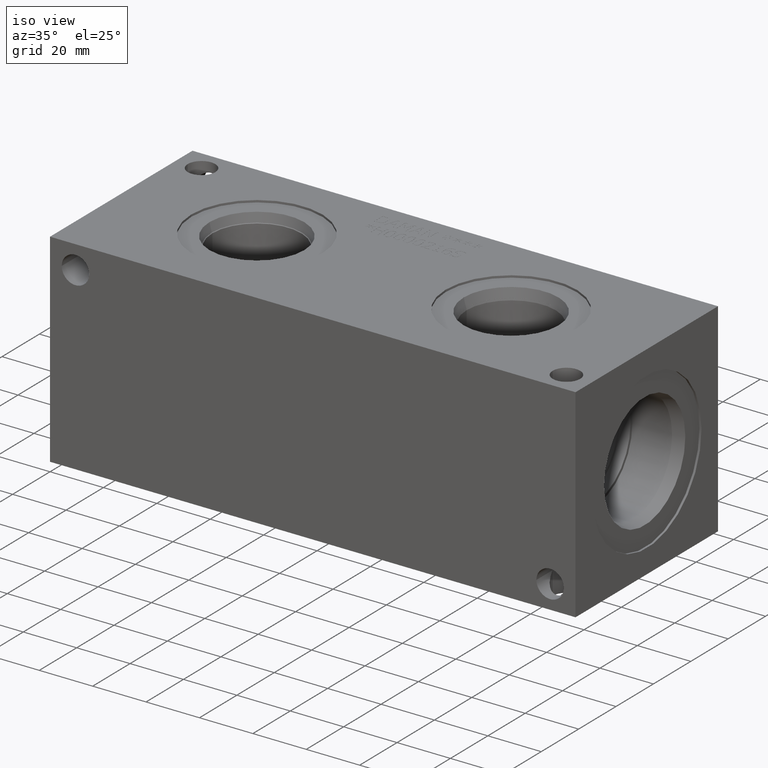
[diagram: clean part render]
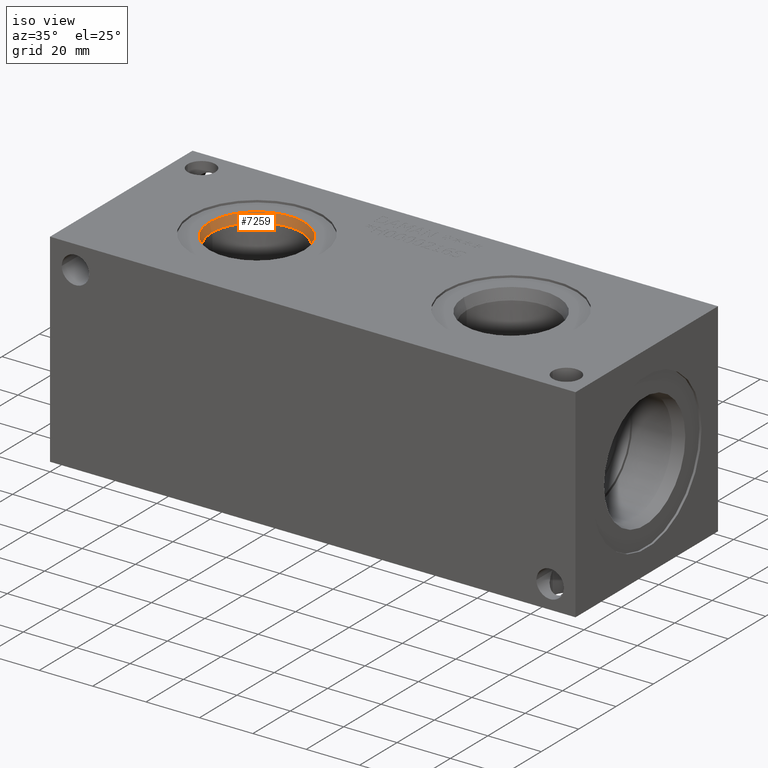
[diagram: same view with one face highlighted and labeled with its STEP entity id]
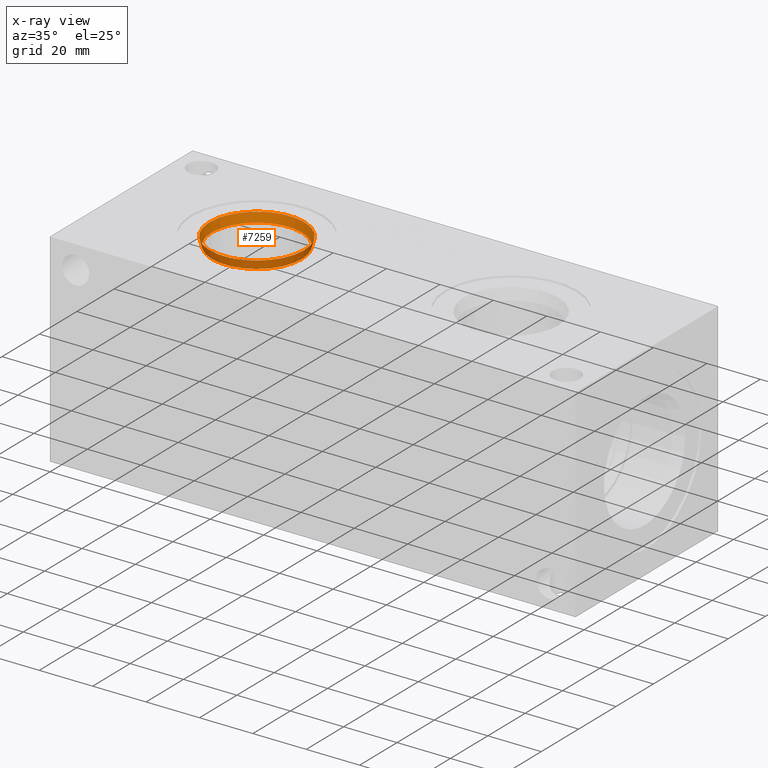
[diagram: x-ray of the same camera — body ghosted, the highlighted face saturated]
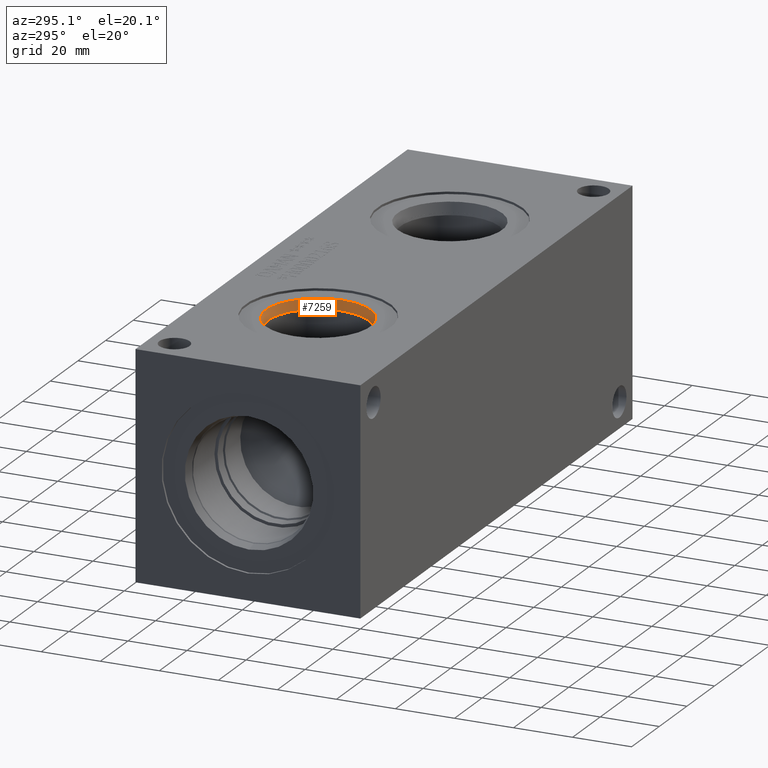
[diagram: same view with one face highlighted and labeled with its STEP entity id]
A machine part, iso view. The second image highlights one B-rep face of the part: STEP entity #7259.
The next image is the same camera in x-ray: the body ghosted, the highlighted face saturated — about 0% of this face is hidden behind the body in this view.
A second angle (auxiliary view) of the same face is appended — the face is thin or edge-on in the first view.
In plain terms, the highlighted conical surface has half-angle 15 deg.
Its self-contained STEP definition (entity closure, byte-faithful):
#31=CONICAL_SURFACE('',#7596,17.31645,0.261799389532319);
#123=CIRCLE('',#7594,17.7546);
#124=CIRCLE('',#7595,17.7546);
#125=CIRCLE('',#7597,16.8783);
#126=CIRCLE('',#7598,16.8783);
#883=FACE_OUTER_BOUND('',#1285,.T.);
#1285=EDGE_LOOP('',(#6252,#6253,#6254,#6255,#6256,#6257));
#1981=LINE('',#12583,#2663);
#2663=VECTOR('',#8910,17.31645);
#3324=VERTEX_POINT('',#12577);
#3325=VERTEX_POINT('',#12578);
#3326=VERTEX_POINT('',#12582);
#3327=VERTEX_POINT('',#12584);
#4315=EDGE_CURVE('',#3324,#3325,#123,.T.);
#4316=EDGE_CURVE('',#3325,#3324,#124,.T.);
#4317=EDGE_CURVE('',#3325,#3326,#1981,.T.);
#4318=EDGE_CURVE('',#3326,#3327,#125,.T.);
#4319=EDGE_CURVE('',#3327,#3326,#126,.T.);
#6252=ORIENTED_EDGE('',*,*,#4315,.F.);
#6253=ORIENTED_EDGE('',*,*,#4316,.F.);
#6254=ORIENTED_EDGE('',*,*,#4317,.T.);
#6255=ORIENTED_EDGE('',*,*,#4318,.T.);
#6256=ORIENTED_EDGE('',*,*,#4319,.T.);
#6257=ORIENTED_EDGE('',*,*,#4317,.F.);
#7259=ADVANCED_FACE('',(#883),#31,.F.);
#7594=AXIS2_PLACEMENT_3D('',#12579,#8904,#8905);
#7595=AXIS2_PLACEMENT_3D('',#12580,#8906,#8907);
#7596=AXIS2_PLACEMENT_3D('',#12581,#8908,#8909);
#7597=AXIS2_PLACEMENT_3D('',#12585,#8911,#8912);
#7598=AXIS2_PLACEMENT_3D('',#12586,#8913,#8914);
#8904=DIRECTION('center_axis',(0.,0.,-1.));
#8905=DIRECTION('ref_axis',(1.,0.,0.));
#8906=DIRECTION('center_axis',(0.,0.,-1.));
#8907=DIRECTION('ref_axis',(1.,0.,0.));
#8908=DIRECTION('center_axis',(0.,0.,1.));
#8909=DIRECTION('ref_axis',(1.,0.,0.));
#8910=DIRECTION('',(0.258819046776634,-3.16961917193374E-17,-0.965925825840491));
#8911=DIRECTION('center_axis',(0.,0.,-1.));
#8912=DIRECTION('ref_axis',(1.,0.,0.));
#8913=DIRECTION('center_axis',(0.,0.,-1.));
#8914=DIRECTION('ref_axis',(1.,0.,0.));
#12577=CARTESIAN_POINT('',(68.5546,38.1,75.4126));
#12578=CARTESIAN_POINT('',(33.0454,38.1,75.4126));
#12579=CARTESIAN_POINT('Origin',(50.8,38.1,75.4126));
#12580=CARTESIAN_POINT('Origin',(50.8,38.1,75.4126));
#12581=CARTESIAN_POINT('Origin',(50.8,38.1,73.77740195));
#12582=CARTESIAN_POINT('',(33.9217,38.1,72.1422039));
#12583=CARTESIAN_POINT('',(33.48355,38.1,73.77740195));
#12584=CARTESIAN_POINT('',(67.6783,38.1,72.1422039));
#12585=CARTESIAN_POINT('Origin',(50.8,38.1,72.1422039));
#12586=CARTESIAN_POINT('Origin',(50.8,38.1,72.1422039));